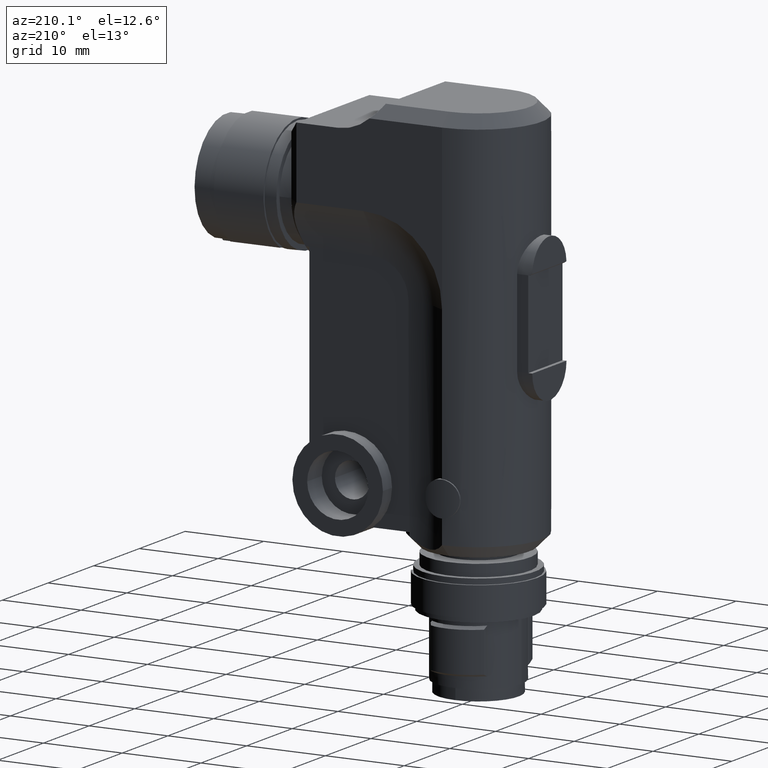
[diagram: clean part render]
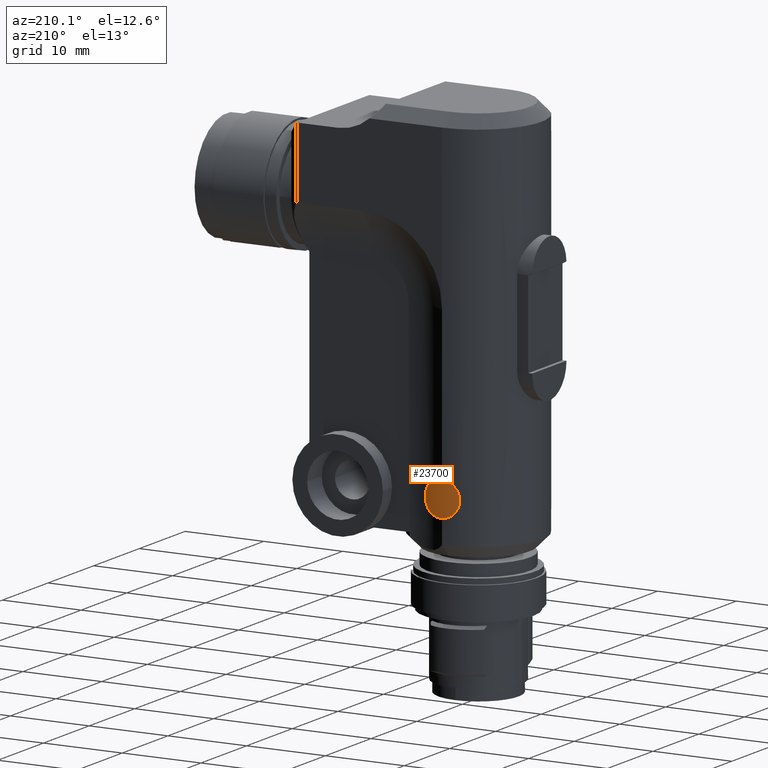
[diagram: same view with one face highlighted and labeled with its STEP entity id]
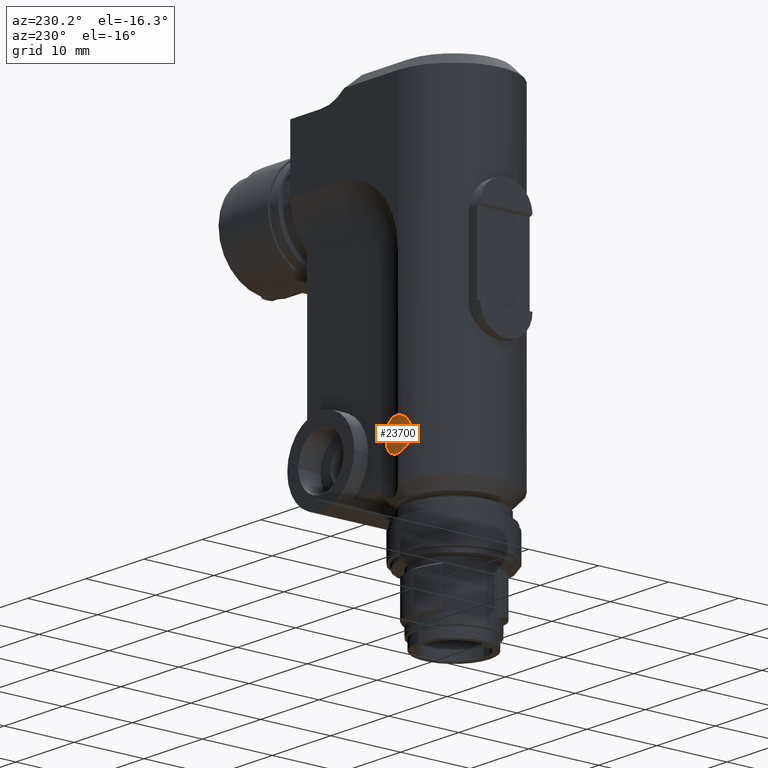
[diagram: same view with one face highlighted and labeled with its STEP entity id]
A machine part, auxiliary view. The second image highlights one B-rep face of the part: STEP entity #23700.
A second angle (auxiliary view) of the same face is appended — the face is thin or edge-on in the first view.
In plain terms, the highlighted cylindrical surface (partial cylindrical patch) has radius 8.201 mm, axis along (0, -0, 1).
Its self-contained STEP definition (entity closure, byte-faithful):
#7310=CARTESIAN_POINT('',(-8.00000000000064,305.134993871815,4.55));
#7320=CARTESIAN_POINT('',(-8.00000000000064,303.423331201174,4.55));
#7330=CARTESIAN_POINT('',(-8.00000000000064,301.711668530533,4.55));
#7340=CARTESIAN_POINT('',(-8.00000000000064,200.000003906595,4.55));
#7350=CARTESIAN_POINT('',(-8.00000000000064,100.000001953297,4.55));
#7360=CARTESIAN_POINT('',(-8.00000000000065,-0.277683059985009,4.55));
#7370=CARTESIAN_POINT('',(-8.00000000000065,-0.572961063435002,
4.60577237163017));
#7380=CARTESIAN_POINT('',(-8.00000000000065,-1.1146110937259,
4.83071926559079));
#7390=CARTESIAN_POINT('',(-8.00000000000065,-1.36109028303667,
4.99982044581586));
#7400=CARTESIAN_POINT('',(-8.00000000000065,-1.75021595875995,
5.38894612153914));
#7410=CARTESIAN_POINT('',(-8.00000000000065,-1.91928881847184,
5.63541027472915));
#7420=CARTESIAN_POINT('',(-8.00000000000065,-2.1442149628536,
6.17700653646077));
#7430=CARTESIAN_POINT('',(-8.00000000000064,-2.19999999999999,
6.47226497798593));
#7440=CARTESIAN_POINT('',(-8.00000000000064,-2.19999999999999,
7.02773502201409));
#7450=CARTESIAN_POINT('',(-8.00000000000064,-2.1442149628536,
7.32299346353924));
#7460=CARTESIAN_POINT('',(-8.00000000000064,-1.91928881847184,
7.86458972527087));
#7470=CARTESIAN_POINT('',(-8.00000000000064,-1.75021595875995,
8.11105387846088));
#7480=CARTESIAN_POINT('',(-8.00000000000064,-1.36109028303667,
8.50017955418415));
#7490=CARTESIAN_POINT('',(-8.00000000000064,-1.1146110937259,
8.66928073440923));
#7500=CARTESIAN_POINT('',(-8.00000000000064,-0.572961063435002,
8.89422762836984));
#7510=CARTESIAN_POINT('',(-8.00000000000064,-0.277683059985009,
8.95000000000001));
#7520=CARTESIAN_POINT('',(-8.00000000000064,100.000001953297,
8.95000000000001));
#7530=CARTESIAN_POINT('',(-8.00000000000064,200.000003906595,
8.95000000000001));
#7540=CARTESIAN_POINT('',(-8.00000000000063,301.711668530533,
8.95000000000001));
#7550=CARTESIAN_POINT('',(-8.00000000000063,303.423331201174,
8.95000000000001));
#7560=CARTESIAN_POINT('',(-8.00000000000063,305.134993871815,
8.95000000000001));
#7570=B_SPLINE_CURVE_WITH_KNOTS('',3,(#7310,#7320,#7330,#7340,#7350,
#7360,#7370,#7380,#7390,#7400,#7410,#7420,#7430,#7440,#7450,#7460,#7470,
#7480,#7490,#7500,#7510,#7520,#7530,#7540,#7550,#7560),.UNSPECIFIED.,.F.
,.F.,(4,2,2,2,2,2,2,2,2,2,2,2,4),(-45.7815778421587,-45.0111389934268,0.
,0.124988305649667,0.249976611299334,0.374988305649667,0.5,
0.625011694350332,0.750023388700666,0.875011694350333,1.,
46.0111389934294,46.7815778421614),.UNSPECIFIED.);
#7580=DIRECTION('',(1.,-3.0839528461811E-17,-8.91609571378369E-16));
#7590=VECTOR('',#7580,1.);
#7600=SURFACE_OF_LINEAR_EXTRUSION('',#7570,#7590);
#11790=CARTESIAN_POINT('',(-7.99999999999999,-288.297717083381,
8.95000000000001));
#11800=CARTESIAN_POINT('',(-7.99999999999999,-286.479384099412,
8.95000000000001));
#11810=CARTESIAN_POINT('',(-7.99999999999999,-284.661051115443,
8.95000000000001));
#11820=CARTESIAN_POINT('',(-7.99999999999999,-188.561812087649,
8.95000000000001));
#11830=CARTESIAN_POINT('',(-7.99999999999999,-94.2809060438244,
8.95000000000001));
#11840=CARTESIAN_POINT('',(-7.99999999999999,0.277683059985009,
8.95000000000001));
#11850=CARTESIAN_POINT('',(-7.99999999999999,0.572961063435002,
8.89422762836984));
#11860=CARTESIAN_POINT('',(-7.99999999999999,1.1146110937259,
8.66928073440923));
#11870=CARTESIAN_POINT('',(-7.99999999999999,1.36109028303667,
8.50017955418415));
#11880=CARTESIAN_POINT('',(-7.99999999999999,1.75021595875995,
8.11105387846088));
#11890=CARTESIAN_POINT('',(-7.99999999999999,1.9192888184719,
7.86458972527087));
#11900=CARTESIAN_POINT('',(-7.99999999999999,2.1442149628536,
7.32299346353924));
#11910=CARTESIAN_POINT('',(-7.99999999999999,2.19999999999999,
7.02773502201409));
#11920=CARTESIAN_POINT('',(-7.99999999999999,2.19999999999999,
6.47226497798593));
#11930=CARTESIAN_POINT('',(-7.99999999999999,2.1442149628536,
6.17700653646077));
#11940=CARTESIAN_POINT('',(-7.99999999999999,1.9192888184719,
5.63541027472915));
#11950=CARTESIAN_POINT('',(-7.99999999999999,1.75021595875995,
5.38894612153914));
#11960=CARTESIAN_POINT('',(-7.99999999999999,1.36109028303667,
4.99982044581586));
#11970=CARTESIAN_POINT('',(-7.99999999999999,1.1146110937259,
4.83071926559079));
#11980=CARTESIAN_POINT('',(-7.99999999999999,0.572961063435002,
4.60577237163017));
#11990=CARTESIAN_POINT('',(-7.99999999999999,0.277683059985009,4.55));
#12000=CARTESIAN_POINT('',(-7.99999999999999,-94.2809060438244,4.55));
#12010=CARTESIAN_POINT('',(-8.,-188.561812087649,4.55));
#12020=CARTESIAN_POINT('',(-8.,-284.661051115443,4.55));
#12030=CARTESIAN_POINT('',(-8.,-286.479384099412,4.55));
#12040=CARTESIAN_POINT('',(-8.,-288.297717083381,4.55));
#12050=B_SPLINE_CURVE_WITH_KNOTS('',3,(#11790,#11800,#11810,#11820,
#11830,#11840,#11850,#11860,#11870,#11880,#11890,#11900,#11910,#11920,
#11930,#11940,#11950,#11960,#11970,#11980,#11990,#12000,#12010,#12020,
#12030,#12040),.UNSPECIFIED.,.F.,.F.,(4,2,2,2,2,2,2,2,2,2,2,2,4),(
-43.2553612055216,-42.4369088347306,0.,0.124988305649672,
0.249976611299327,0.374988305649668,0.499999999999993,0.625011694350334,
0.750023388700659,0.87501169435033,1.,43.4369088347325,44.2553612055235)
,.UNSPECIFIED.);
#12060=DIRECTION('',(1.,-3.0839528461811E-17,-8.91609571378369E-16));
#12070=VECTOR('',#12060,1.);
#12080=SURFACE_OF_LINEAR_EXTRUSION('',#12050,#12070);
#20130=CARTESIAN_POINT('',(1.22044833166677E-13,2.09524963165215E-14,6.3
));
#20140=DIRECTION('',(8.91609571378369E-16,1.60567386648952E-31,1.));
#20150=DIRECTION('',(1.,-3.08395284618109E-17,-8.91609571378369E-16));
#20160=AXIS2_PLACEMENT_3D('',#20130,#20140,#20150);
#20170=CYLINDRICAL_SURFACE('',#20160,8.20100000000012);
#20180=CARTESIAN_POINT('',(-8.201,-2.42937352408104E-14,4.55));
#20190=CARTESIAN_POINT('',(-8.201,-0.0435929381622827,4.55));
#20200=CARTESIAN_POINT('',(-8.20065197846482,-0.0871847895171171,
4.55137258002576));
#20210=CARTESIAN_POINT('',(-8.19995862784445,-0.130688567363351,
4.55405118064142));
#20220=CARTESIAN_POINT('',(-8.19926533063975,-0.174188993682367,
4.55672957489793));
#20230=CARTESIAN_POINT('',(-8.19822641844186,-0.217616905346762,
4.56071550494725));
#20240=CARTESIAN_POINT('',(-8.19684994649795,-0.260867695578726,
4.56596126998666));
#20250=CARTESIAN_POINT('',(-8.195473311658,-0.304123604246075,
4.5712076558265));
#20260=CARTESIAN_POINT('',(-8.19375770586023,-0.347242867538714,
4.57771949105158));
#20270=CARTESIAN_POINT('',(-8.19171614724751,-0.390112244007354,
4.58546454331642));
#20280=CARTESIAN_POINT('',(-8.19069536673442,-0.411546957581073,
4.58933707402682));
#20290=CARTESIAN_POINT('',(-8.18959320335963,-0.432919233979463,
4.59351802458713));
#20300=CARTESIAN_POINT('',(-8.1884119247312,-0.454214873072047,
4.59800390973229));
#20310=CARTESIAN_POINT('',(-8.18723065846734,-0.475510289260991,
4.60248974792323));
#20320=CARTESIAN_POINT('',(-8.18596895790823,-0.496752826906849,
4.60728552706882));
#20330=CARTESIAN_POINT('',(-8.18462903137979,-0.517927233011752,
4.61238993790416));
#20340=CARTESIAN_POINT('',(-8.18194917879125,-0.560276037820498,
4.62259875779071));
#20350=CARTESIAN_POINT('',(-8.17895597224747,-0.60235233914274,
4.63404195280558));
#20360=CARTESIAN_POINT('',(-8.1756725283393,-0.644033934943641,
4.64671114367802));
#20370=CARTESIAN_POINT('',(-8.17238908415114,-0.685715534298825,
4.65938033563078));
#20380=CARTESIAN_POINT('',(-8.16881541546391,-0.7270024727477,
4.67327557307674));
#20390=CARTESIAN_POINT('',(-8.16498171971145,-0.767772438146948,
4.68839076959702));
#20400=CARTESIAN_POINT('',(-8.16306487169086,-0.788157422381795,
4.69594836842633));
#20410=CARTESIAN_POINT('',(-8.16108312577906,-0.80841316485137,
4.70381099055764));
#20420=CARTESIAN_POINT('',(-8.15904089829518,-0.828524362916756,
4.71197805082973));
#20430=CARTESIAN_POINT('',(-8.15699898058923,-0.848632510388874,
4.72014387227064));
#20440=CARTESIAN_POINT('',(-8.1548959251733,-0.868603620495223,
4.72861877586198));
#20450=CARTESIAN_POINT('',(-8.15273247604234,-0.888456061988792,
4.73740530406343));
#20460=CARTESIAN_POINT('',(-8.14840609882188,-0.928156163747256,
4.75497624433364));
#20470=CARTESIAN_POINT('',(-8.14384207758482,-0.96734119396262,
4.77377450945609));
#20480=CARTESIAN_POINT('',(-8.13907290061035,-1.00592908226935,
4.79371506998204));
#20490=CARTESIAN_POINT('',(-8.13430372351038,-1.04451697159151,
4.81365563103272));
#20500=CARTESIAN_POINT('',(-8.12932937983179,-1.08250792353898,
4.83473854296563));
#20510=CARTESIAN_POINT('',(-8.1241864987951,-1.11981906252683,
4.85688175421557));
#20520=CARTESIAN_POINT('',(-8.11904362051916,-1.1571301814857,
4.8790249535788));
#20530=CARTESIAN_POINT('',(-8.11373218300521,-1.19376174722654,
4.90222854623059));
#20540=CARTESIAN_POINT('',(-8.10829288396631,-1.22962901227209,
4.92641368589961));
#20550=CARTESIAN_POINT('',(-8.10285550914093,-1.26548358886726,
4.95059026980213));
#20560=CARTESIAN_POINT('',(-8.09727438932915,-1.30067963570003,
4.97581818293825));
#20570=CARTESIAN_POINT('',(-8.09159021698253,-1.33512874301803,
5.00205020352021));
#20580=CARTESIAN_POINT('',(-8.08590616244854,-1.36957713632882,
5.0282816804059));
#20590=CARTESIAN_POINT('',(-8.08011945441222,-1.40327607205907,
5.05551520463425));
#20600=CARTESIAN_POINT('',(-8.07427695726709,-1.43612416501714,
5.08370537106547));
#20610=CARTESIAN_POINT('',(-8.06843447227693,-1.46897218963666,
5.11189547884869));
#20620=CARTESIAN_POINT('',(-8.06253600787031,-1.50097046109125,
5.14104271140809));
#20630=CARTESIAN_POINT('',(-8.05663394407753,-1.53200864590831,
5.17111149558006));
#20640=CARTESIAN_POINT('',(-8.05368270247456,-1.54752884113641,
5.18614695604179));
#20650=CARTESIAN_POINT('',(-8.05073205363097,-1.56280172386644,
5.2014089773378));
#20660=CARTESIAN_POINT('',(-8.04778376283874,-1.57783950602066,
5.21690924837652));
#20670=CARTESIAN_POINT('',(-8.04483606210331,-1.59287427858513,
5.23240641726519));
#20680=CARTESIAN_POINT('',(-8.04188735544639,-1.60769102010474,
5.2481562219785));
#20690=CARTESIAN_POINT('',(-8.03894226994744,-1.62228486415104,
5.26414604312716));
#20700=CARTESIAN_POINT('',(-8.0330521386538,-1.65147235549632,
5.29612546985726));
#20710=CARTESIAN_POINT('',(-8.02717663419379,-1.67976729588466,
5.32906294071724));
#20720=CARTESIAN_POINT('',(-8.0213560330031,-1.70711698249394,
5.36285720539045));
#20730=CARTESIAN_POINT('',(-8.01553541409282,-1.73446675236354,
5.39665157294313));
#20740=CARTESIAN_POINT('',(-8.0097696119548,-1.76087169871938,
5.43130353914668));
#20750=CARTESIAN_POINT('',(-8.0041007515746,-1.78627325997331,
5.46672081496357));
#20760=CARTESIAN_POINT('',(-7.99667330825851,-1.81955484457767,
5.51312516978932));
#20770=CARTESIAN_POINT('',(-7.98941199097732,-1.85111523706077,
5.56084441181492));
#20780=CARTESIAN_POINT('',(-7.98241590736013,-1.88080761427742,
5.60968389192019));
#20790=CARTESIAN_POINT('',(-7.97541982820568,-1.91049997255357,
5.65852334087122));
#20800=CARTESIAN_POINT('',(-7.9686889446768,-1.93832489963374,
5.70848481910092));
#20810=CARTESIAN_POINT('',(-7.96232572422676,-1.96412068412287,
5.75937969850169));
#20820=CARTESIAN_POINT('',(-7.95596239569058,-1.98991690678111,
5.81027544240667));
#20830=CARTESIAN_POINT('',(-7.94996740638255,-2.01368191784884,
5.86210144958397));
#20840=CARTESIAN_POINT('',(-7.94444245020651,-2.03524818028584,
5.9146794142025));
#20850=CARTESIAN_POINT('',(-7.9389149470673,-2.05682438460732,
5.96728161686655));
#20860=CARTESIAN_POINT('',(-7.93382888710835,-2.07631493528063,
6.02089481215849));
#20870=CARTESIAN_POINT('',(-7.92923691121412,-2.09370556809491,
6.07524283577746));
#20880=CARTESIAN_POINT('',(-7.92464493709205,-2.1110961941977,
6.12959083842216));
#20890=CARTESIAN_POINT('',(-7.92054699233029,-2.12638719428412,
6.1846740515454));
#20900=CARTESIAN_POINT('',(-7.91698741924533,-2.13955864689766,
6.2402175155658));
#20910=CARTESIAN_POINT('',(-7.9152075300502,-2.14614475304899,
6.26799084936457));
#20920=CARTESIAN_POINT('',(-7.91356249042525,-2.15219945484057,
6.29587247898553));
#20930=CARTESIAN_POINT('',(-7.91205603887231,-2.15772339231519,
6.32384760611993));
#20940=CARTESIAN_POINT('',(-7.91054905644834,-2.16324927641625,
6.35183259164293));
#20950=CARTESIAN_POINT('',(-7.90917824935354,-2.16825319535051,
6.37995888803184));
#20960=CARTESIAN_POINT('',(-7.9079498236591,-2.17272423157892,
6.40819244137439));
#20970=CARTESIAN_POINT('',(-7.90549298124394,-2.18166627137454,
6.46465934181166));
#20980=CARTESIAN_POINT('',(-7.90360592119882,-2.18847825323399,
6.52155581987446));
#20990=CARTESIAN_POINT('',(-7.90233401775343,-2.19306134703453,
6.57861236367154));
#21000=CARTESIAN_POINT('',(-7.90106212220757,-2.19764441237043,
6.63566855310242));
#21010=CARTESIAN_POINT('',(-7.900405116195,-2.19999999999999,
6.69288803856371));
#21020=CARTESIAN_POINT('',(-7.900405116195,-2.19999999999999,
6.75000000000002));
#21030=CARTESIAN_POINT('',(-7.900405116195,-2.19999999999999,
6.80711196143632));
#21040=CARTESIAN_POINT('',(-7.90106212220757,-2.19764441237043,
6.86433144689763));
#21050=CARTESIAN_POINT('',(-7.90233401775343,-2.19306134703453,
6.9213876363285));
#21060=CARTESIAN_POINT('',(-7.90360592119882,-2.18847825323399,
6.97844418012556));
#21070=CARTESIAN_POINT('',(-7.90549298124394,-2.18166627137453,
7.03534065818839));
#21080=CARTESIAN_POINT('',(-7.90794982365909,-2.17272423157891,
7.09180755862564));
#21090=CARTESIAN_POINT('',(-7.90917824935353,-2.16825319535051,
7.1200411119682));
#21100=CARTESIAN_POINT('',(-7.91054905644834,-2.16324927641624,
7.14816740835711));
#21110=CARTESIAN_POINT('',(-7.91205603887232,-2.15772339231518,
7.1761523938801));
#21120=CARTESIAN_POINT('',(-7.91356249042525,-2.15219945484056,
7.2041275210145));
#21130=CARTESIAN_POINT('',(-7.9152075300502,-2.14614475304898,
7.23200915063547));
#21140=CARTESIAN_POINT('',(-7.91698741924533,-2.13955864689766,
7.25978248443423));
#21150=CARTESIAN_POINT('',(-7.92054699233029,-2.12638719428411,
7.31532594845464));
#21160=CARTESIAN_POINT('',(-7.92464493709205,-2.11109619419769,
7.37040916157788));
#21170=CARTESIAN_POINT('',(-7.92923691121412,-2.0937055680949,
7.42475716422257));
#21180=CARTESIAN_POINT('',(-7.93382888710835,-2.07631493528062,
7.47910518784155));
#21190=CARTESIAN_POINT('',(-7.9389149470673,-2.05682438460731,
7.53271838313348));
#21200=CARTESIAN_POINT('',(-7.94444245020651,-2.03524818028583,
7.58532058579753));
#21210=CARTESIAN_POINT('',(-7.94996740638255,-2.01368191784883,
7.63789855041607));
#21220=CARTESIAN_POINT('',(-7.95596239569058,-1.9899169067811,
7.68972455759335));
#21230=CARTESIAN_POINT('',(-7.96232572422676,-1.96412068412286,
7.74062030149834));
#21240=CARTESIAN_POINT('',(-7.9686889446768,-1.93832489963373,
7.79151518089911));
#21250=CARTESIAN_POINT('',(-7.97541982820568,-1.91049997255356,
7.84147665912882));
#21260=CARTESIAN_POINT('',(-7.98241590736013,-1.8808076142774,
7.89031610807984));
#21270=CARTESIAN_POINT('',(-7.98941199097732,-1.85111523706076,
7.93915558818512));
#21280=CARTESIAN_POINT('',(-7.99667330825852,-1.81955484457766,
7.98687483021072));
#21290=CARTESIAN_POINT('',(-8.0041007515746,-1.7862732599733,
8.03327918503647));
#21300=CARTESIAN_POINT('',(-8.0097696119548,-1.76087169871937,
8.06869646085335));
#21310=CARTESIAN_POINT('',(-8.01553541409282,-1.73446675236353,
8.10334842705691));
#21320=CARTESIAN_POINT('',(-8.0213560330031,-1.70711698249392,
8.13714279460958));
#21330=CARTESIAN_POINT('',(-8.02717663419178,-1.67976729589409,
8.17093705927111));
#21340=CARTESIAN_POINT('',(-8.03305213865176,-1.65147235550643,
8.20387453013168));
#21350=CARTESIAN_POINT('',(-8.03894226994745,-1.62228486415102,
8.23585395687287));
#21360=CARTESIAN_POINT('',(-8.04188735544639,-1.60769102010472,
8.25184377802153));
#21370=CARTESIAN_POINT('',(-8.04483606210331,-1.59287427858511,
8.26759358273485));
#21380=CARTESIAN_POINT('',(-8.04778376283874,-1.57783950602064,
8.28309075162352));
#21390=CARTESIAN_POINT('',(-8.0507320536312,-1.56280172386523,
8.29859102266346));
#21400=CARTESIAN_POINT('',(-8.05368270247479,-1.54752884113515,
8.31385304395943));
#21410=CARTESIAN_POINT('',(-8.05663394407753,-1.53200864590829,
8.32888850441997));
#21420=CARTESIAN_POINT('',(-8.0625360078703,-1.50097046109124,
8.35895728859193));
#21430=CARTESIAN_POINT('',(-8.06843447227694,-1.46897218963662,
8.38810452115135));
#21440=CARTESIAN_POINT('',(-8.07427695726709,-1.43612416501712,
8.41629462893455));
#21450=CARTESIAN_POINT('',(-8.08011945441221,-1.40327607205905,
8.44448479536577));
#21460=CARTESIAN_POINT('',(-8.08590616244854,-1.3695771363288,
8.47171831959413));
#21470=CARTESIAN_POINT('',(-8.09159021698253,-1.335128743018,
8.49794979647981));
#21480=CARTESIAN_POINT('',(-8.09727438932915,-1.30067963570001,
8.52418181706178));
#21490=CARTESIAN_POINT('',(-8.10285550914092,-1.26548358886725,
8.54940973019789));
#21500=CARTESIAN_POINT('',(-8.10829288396631,-1.22962901227207,
8.57358631410042));
#21510=CARTESIAN_POINT('',(-8.11373218300521,-1.19376174722652,
8.59777145376943));
#21520=CARTESIAN_POINT('',(-8.11904362051915,-1.15713018148567,
8.62097504642122));
#21530=CARTESIAN_POINT('',(-8.12418649879509,-1.11981906252681,
8.64311824578446));
#21540=CARTESIAN_POINT('',(-8.12932937983178,-1.08250792353895,
8.66526145703439));
#21550=CARTESIAN_POINT('',(-8.13430372351038,-1.04451697159149,
8.6863443689673));
#21560=CARTESIAN_POINT('',(-8.13907290061035,-1.00592908226933,
8.70628493001798));
#21570=CARTESIAN_POINT('',(-8.14384207758482,-0.967341193962595,
8.72622549054393));
#21580=CARTESIAN_POINT('',(-8.14840609882188,-0.928156163747231,
8.74502375566638));
#21590=CARTESIAN_POINT('',(-8.15273247604234,-0.888456061988767,
8.76259469593659));
#21600=CARTESIAN_POINT('',(-8.1548959251733,-0.868603620495198,
8.77138122413804));
#21610=CARTESIAN_POINT('',(-8.15699898058923,-0.848632510388848,
8.77985612772938));
#21620=CARTESIAN_POINT('',(-8.15904089829518,-0.82852436291673,
8.78802194917029));
#21630=CARTESIAN_POINT('',(-8.16108312577906,-0.808413164851346,
8.79618900944238));
#21640=CARTESIAN_POINT('',(-8.16306487169087,-0.788157422381768,
8.80405163157369));
#21650=CARTESIAN_POINT('',(-8.16498171971145,-0.767772438146922,
8.811609230403));
#21660=CARTESIAN_POINT('',(-8.16881541546391,-0.727002472747679,
8.82672442692327));
#21670=CARTESIAN_POINT('',(-8.17238908415113,-0.685715534298791,
8.84061966436923));
#21680=CARTESIAN_POINT('',(-8.17567252833929,-0.644033934943612,
8.853288856322));
#21690=CARTESIAN_POINT('',(-8.17895597224747,-0.602352339142713,
8.86595804719444));
#21700=CARTESIAN_POINT('',(-8.18194917879125,-0.560276037820468,
8.87740124220931));
#21710=CARTESIAN_POINT('',(-8.18462903137979,-0.517927233011723,
8.88761006209585));
#21720=CARTESIAN_POINT('',(-8.18596895790823,-0.496752826906812,
8.8927144729312));
#21730=CARTESIAN_POINT('',(-8.18723065846734,-0.475510289260969,
8.89751025207678));
#21740=CARTESIAN_POINT('',(-8.1884119247312,-0.454214873072016,
8.90199609026772));
#21750=CARTESIAN_POINT('',(-8.18959320335963,-0.432919233979436,
8.90648197541288));
#21760=CARTESIAN_POINT('',(-8.19069536673441,-0.41154695758104,
8.91066292597319));
#21770=CARTESIAN_POINT('',(-8.1917161472475,-0.390112244007326,
8.91453545668358));
#21780=CARTESIAN_POINT('',(-8.19375770586013,-0.347242867540663,
8.92228050894807));
#21790=CARTESIAN_POINT('',(-8.19547331165793,-0.304123604248027,
8.92879234417327));
#21800=CARTESIAN_POINT('',(-8.19684994649795,-0.260867695578694,
8.93403873001335));
#21810=CARTESIAN_POINT('',(-8.19822641844127,-0.217616905365155,
8.93928449505052));
#21820=CARTESIAN_POINT('',(-8.19926533063945,-0.17418899370089,
8.94327042510093));
#21830=CARTESIAN_POINT('',(-8.19995862784444,-0.130688567363318,
8.94594881935858));
#21840=CARTESIAN_POINT('',(-8.20065197846481,-0.0871847895170942,
8.94862741997424));
#21850=CARTESIAN_POINT('',(-8.201,-0.0435929381622486,8.95000000000001))
;
#21860=CARTESIAN_POINT('',(-8.201,5.20666688032169E-15,8.95000000000001)
);
#21870=B_SPLINE_CURVE_WITH_KNOTS('',3,(#20180,#20190,#20200,#20210,
#20220,#20230,#20240,#20250,#20260,#20270,#20280,#20290,#20300,#20310,
#20320,#20330,#20340,#20350,#20360,#20370,#20380,#20390,#20400,#20410,
#20420,#20430,#20440,#20450,#20460,#20470,#20480,#20490,#20500,#20510,
#20520,#20530,#20540,#20550,#20560,#20570,#20580,#20590,#20600,#20610,
#20620,#20630,#20640,#20650,#20660,#20670,#20680,#20690,#20700,#20710,
#20720,#20730,#20740,#20750,#20760,#20770,#20780,#20790,#20800,#20810,
#20820,#20830,#20840,#20850,#20860,#20870,#20880,#20890,#20900,#20910,
#20920,#20930,#20940,#20950,#20960,#20970,#20980,#20990,#21000,#21010,
#21020,#21030,#21040,#21050,#21060,#21070,#21080,#21090,#21100,#21110,
#21120,#21130,#21140,#21150,#21160,#21170,#21180,#21190,#21200,#21210,
#21220,#21230,#21240,#21250,#21260,#21270,#21280,#21290,#21300,#21310,
#21320,#21330,#21340,#21350,#21360,#21370,#21380,#21390,#21400,#21410,
#21420,#21430,#21440,#21450,#21460,#21470,#21480,#21490,#21500,#21510,
#21520,#21530,#21540,#21550,#21560,#21570,#21580,#21590,#21600,#21610,
#21620,#21630,#21640,#21650,#21660,#21670,#21680,#21690,#21700,#21710,
#21720,#21730,#21740,#21750,#21760,#21770,#21780,#21790,#21800,#21810,
#21820,#21830,#21840,#21850,#21860),.UNSPECIFIED.,.F.,.F.,(4,3,3,3,3,3,3
,3,3,3,3,3,3,3,3,3,3,3,3,3,3,3,3,3,3,3,3,3,3,3,3,3,3,3,3,3,3,3,3,3,3,3,3
,3,3,3,3,3,3,3,3,3,3,3,3,3,4),(0.,0.13077747151571,0.261557676371862,
0.39238586618688,0.457789356783741,0.523217555707179,0.654237450172557,
0.785264320983749,0.850707393874198,0.916117627246204,1.04712361689443,
1.17822484102685,1.30918389728261,1.44008365736083,1.57112643552222,
1.70208461907622,1.76748006191934,1.83294151762232,1.96429845872615,
2.09604042634129,2.26883995797655,2.44137506621002,2.61316836696454,
2.78476431649991,2.95647463444922,3.04220210873371,3.12797433658646,
3.29974063944745,3.47132896930246,3.64291729915747,3.81468360201846,
3.90045582987122,3.98618330415571,4.15789362210502,4.32948957164038,
4.50128287239489,4.67381798062836,4.84661751226362,4.97835947987877,
5.10971642098258,5.17517787668555,5.24057331952867,5.37153150308267,
5.50257428124406,5.63347404132228,5.76443309757804,5.89553432171046,
6.02654031135869,6.0919505447307,6.15739361762115,6.28842048843234,
6.41944038289771,6.48486858182115,6.55027207241802,6.68110026223303,
6.81188046708917,6.94265793860488),.UNSPECIFIED.);
#21880=SURFACE_CURVE('',#21870,(#20170,#7600),.CURVE_3D.);
#21890=CARTESIAN_POINT('',(-8.201,-2.50848416113119E-14,4.55));
#21900=VERTEX_POINT('',#21890);
#21910=CARTESIAN_POINT('',(-8.201,4.78015775110898E-15,8.95000000000001)
);
#21920=VERTEX_POINT('',#21910);
#21930=EDGE_CURVE('',#21900,#21920,#21880,.T.);
#21940=ORIENTED_EDGE('',*,*,#21930,.T.);
#21950=CARTESIAN_POINT('',(-8.201,6.23875529591862E-15,8.95000000000001)
);
#21960=CARTESIAN_POINT('',(-8.201,0.0435929381622577,8.95000000000001));
#21970=CARTESIAN_POINT('',(-8.20065197846481,0.087184789517093,
8.94862741997424));
#21980=CARTESIAN_POINT('',(-8.19995862784444,0.130688567363324,
8.94594881935858));
#21990=CARTESIAN_POINT('',(-8.19926533063974,0.174188993682335,
8.94327042510207));
#22000=CARTESIAN_POINT('',(-8.19822641844186,0.217616905346728,
8.93928449505275));
#22010=CARTESIAN_POINT('',(-8.19684994649795,0.260867695578691,
8.93403873001335));
#22020=CARTESIAN_POINT('',(-8.195473311658,0.304123604246036,
8.92879234417351));
#22030=CARTESIAN_POINT('',(-8.19375770586023,0.347242867538675,
8.92228050894843));
#22040=CARTESIAN_POINT('',(-8.19171614724751,0.39011224400731,
8.91453545668358));
#22050=CARTESIAN_POINT('',(-8.19069536673442,0.411546957581032,
8.91066292597318));
#22060=CARTESIAN_POINT('',(-8.18959320335963,0.432919233979413,
8.90648197541289));
#22070=CARTESIAN_POINT('',(-8.18841192473121,0.454214873071999,
8.90199609026773));
#22080=CARTESIAN_POINT('',(-8.18723065846735,0.475510289260943,
8.89751025207679));
#22090=CARTESIAN_POINT('',(-8.18596895790823,0.496752826906796,
8.8927144729312));
#22100=CARTESIAN_POINT('',(-8.18462903137979,0.517927233011702,
8.88761006209586));
#22110=CARTESIAN_POINT('',(-8.18194917879125,0.560276037820451,
8.87740124220931));
#22120=CARTESIAN_POINT('',(-8.17895597224748,0.602352339142678,
8.86595804719444));
#22130=CARTESIAN_POINT('',(-8.1756725283393,0.644033934943585,
8.85328885632201));
#22140=CARTESIAN_POINT('',(-8.17238908415114,0.685715534298764,
8.84061966436924));
#22150=CARTESIAN_POINT('',(-8.16881541546392,0.727002472747644,
8.82672442692328));
#22160=CARTESIAN_POINT('',(-8.16498171971146,0.767772438146886,
8.81160923040301));
#22170=CARTESIAN_POINT('',(-8.16306487169087,0.788157422381731,
8.8040516315737));
#22180=CARTESIAN_POINT('',(-8.16108312577907,0.808413164851306,
8.79618900944239));
#22190=CARTESIAN_POINT('',(-8.15904089829519,0.82852436291669,
8.78802194917031));
#22200=CARTESIAN_POINT('',(-8.15699898058924,0.848632510388806,
8.77985612772939));
#22210=CARTESIAN_POINT('',(-8.15489592517331,0.868603620495158,
8.77138122413806));
#22220=CARTESIAN_POINT('',(-8.15273247604235,0.888456061988726,
8.76259469593661));
#22230=CARTESIAN_POINT('',(-8.14840609882176,0.928156163748363,
8.74502375566589));
#22240=CARTESIAN_POINT('',(-8.14384207758468,0.967341193963696,
8.72622549054336));
#22250=CARTESIAN_POINT('',(-8.13907290061036,1.00592908226928,
8.70628493001801));
#22260=CARTESIAN_POINT('',(-8.13430372351039,1.04451697159143,
8.68634436896733));
#22270=CARTESIAN_POINT('',(-8.1293293798318,1.08250792353891,
8.66526145703441));
#22280=CARTESIAN_POINT('',(-8.12418649879511,1.11981906252676,
8.64311824578449));
#22290=CARTESIAN_POINT('',(-8.11904362051917,1.15713018148562,
8.62097504642125));
#22300=CARTESIAN_POINT('',(-8.11373218300523,1.19376174722646,
8.59777145376948));
#22310=CARTESIAN_POINT('',(-8.10829288396633,1.22962901227201,
8.57358631410046));
#22320=CARTESIAN_POINT('',(-8.10285550914094,1.26548358886718,
8.54940973019794));
#22330=CARTESIAN_POINT('',(-8.09727438932917,1.30067963569995,
8.52418181706182));
#22340=CARTESIAN_POINT('',(-8.09159021698255,1.33512874301794,
8.49794979647986));
#22350=CARTESIAN_POINT('',(-8.08590616244856,1.36957713632874,
8.47171831959417));
#22360=CARTESIAN_POINT('',(-8.08011945441223,1.40327607205899,
8.44448479536582));
#22370=CARTESIAN_POINT('',(-8.07427695726711,1.43612416501705,
8.41629462893461));
#22380=CARTESIAN_POINT('',(-8.06843447227696,1.46897218963656,
8.3881045211514));
#22390=CARTESIAN_POINT('',(-8.06253600787032,1.50097046109117,
8.358957288592));
#22400=CARTESIAN_POINT('',(-8.05663394407755,1.53200864590822,
8.32888850442003));
#22410=CARTESIAN_POINT('',(-8.05368270247458,1.54752884113632,
8.31385304395831));
#22420=CARTESIAN_POINT('',(-8.05073205363099,1.56280172386636,
8.2985910226623));
#22430=CARTESIAN_POINT('',(-8.04778376283875,1.57783950602057,
8.28309075162359));
#22440=CARTESIAN_POINT('',(-8.04483606210333,1.59287427858504,
8.26759358273492));
#22450=CARTESIAN_POINT('',(-8.04188735544641,1.60769102010465,
8.2518437780216));
#22460=CARTESIAN_POINT('',(-8.03894226994747,1.62228486415095,
8.23585395687295));
#22470=CARTESIAN_POINT('',(-8.03305213865383,1.65147235549624,
8.20387453014285));
#22480=CARTESIAN_POINT('',(-8.02717663419382,1.67976729588456,
8.17093705928289));
#22490=CARTESIAN_POINT('',(-8.02135603300312,1.70711698249386,
8.13714279460968));
#22500=CARTESIAN_POINT('',(-8.01553541409243,1.73446675236541,
8.1033484270546));
#22510=CARTESIAN_POINT('',(-8.00976961195442,1.7608716987211,
8.06869646085095));
#22520=CARTESIAN_POINT('',(-8.00410075157463,1.78627325997323,
8.03327918503658));
#22530=CARTESIAN_POINT('',(-7.99667330825853,1.81955484457761,
7.98687483021082));
#22540=CARTESIAN_POINT('',(-7.98941199097734,1.85111523706071,
7.93915558818523));
#22550=CARTESIAN_POINT('',(-7.98241590736015,1.88080761427737,
7.89031610807996));
#22560=CARTESIAN_POINT('',(-7.9754198282057,1.91049997255353,
7.84147665912893));
#22570=CARTESIAN_POINT('',(-7.96868894467681,1.93832489963371,
7.79151518089921));
#22580=CARTESIAN_POINT('',(-7.96232572422677,1.96412068412284,
7.74062030149844));
#22590=CARTESIAN_POINT('',(-7.95596239569059,1.98991690678109,
7.68972455759346));
#22600=CARTESIAN_POINT('',(-7.94996740638256,2.01368191784882,
7.63789855041616));
#22610=CARTESIAN_POINT('',(-7.94444245020652,2.03524818028582,
7.58532058579762));
#22620=CARTESIAN_POINT('',(-7.93891494706731,2.0568243846073,
7.53271838313356));
#22630=CARTESIAN_POINT('',(-7.93382888710837,2.07631493528062,
7.47910518784161));
#22640=CARTESIAN_POINT('',(-7.92923691121413,2.0937055680949,
7.42475716422264));
#22650=CARTESIAN_POINT('',(-7.92464493709206,2.11109619419769,
7.37040916157794));
#22660=CARTESIAN_POINT('',(-7.9205469923303,2.12638719428411,
7.31532594845469));
#22670=CARTESIAN_POINT('',(-7.91698741924534,2.13955864689766,
7.25978248443427));
#22680=CARTESIAN_POINT('',(-7.91520753005021,2.14614475304898,
7.23200915063551));
#22690=CARTESIAN_POINT('',(-7.91356249042526,2.15219945484056,
7.20412752101453));
#22700=CARTESIAN_POINT('',(-7.91205603887233,2.15772339231518,
7.17615239388014));
#22710=CARTESIAN_POINT('',(-7.91054905644835,2.16324927641624,
7.14816740835713));
#22720=CARTESIAN_POINT('',(-7.90917824935355,2.1682531953505,
7.12004111196823));
#22730=CARTESIAN_POINT('',(-7.90794982365911,2.17272423157891,
7.09180755862567));
#22740=CARTESIAN_POINT('',(-7.90549298124395,2.18166627137453,
7.03534065818839));
#22750=CARTESIAN_POINT('',(-7.90360592119883,2.18847825323399,
6.9784441801256));
#22760=CARTESIAN_POINT('',(-7.90233401775344,2.19306134703453,
6.9213876363285));
#22770=CARTESIAN_POINT('',(-7.90106212220758,2.19764441237043,
6.86433144689762));
#22780=CARTESIAN_POINT('',(-7.90040511619501,2.19999999999999,
6.80711196143632));
#22790=CARTESIAN_POINT('',(-7.90040511619501,2.19999999999999,6.75));
#22800=CARTESIAN_POINT('',(-7.90040511619501,2.19999999999999,
6.69288803856369));
#22810=CARTESIAN_POINT('',(-7.90106212220758,2.19764441237043,
6.63566855310239));
#22820=CARTESIAN_POINT('',(-7.90233401775344,2.19306134703453,
6.5786123636715));
#22830=CARTESIAN_POINT('',(-7.90360592119883,2.18847825323399,
6.52155581987441));
#22840=CARTESIAN_POINT('',(-7.90549298124395,2.18166627137453,
6.46465934181162));
#22850=CARTESIAN_POINT('',(-7.90794982365911,2.17272423157891,
6.40819244137434));
#22860=CARTESIAN_POINT('',(-7.90917824935355,2.1682531953505,
6.37995888803178));
#22870=CARTESIAN_POINT('',(-7.91054905644835,2.16324927641624,
6.35183259164286));
#22880=CARTESIAN_POINT('',(-7.91205603887233,2.15772339231518,
6.32384760611987));
#22890=CARTESIAN_POINT('',(-7.91356249042527,2.15219945484055,
6.29587247898546));
#22900=CARTESIAN_POINT('',(-7.91520753005022,2.14614475304898,
6.2679908493645));
#22910=CARTESIAN_POINT('',(-7.91698741924534,2.13955864689765,
6.24021751556573));
#22920=CARTESIAN_POINT('',(-7.9205469923303,2.12638719428411,
6.18467405154531));
#22930=CARTESIAN_POINT('',(-7.92464493709206,2.11109619419769,
6.12959083842207));
#22940=CARTESIAN_POINT('',(-7.92923691121414,2.09370556809489,
6.07524283577737));
#22950=CARTESIAN_POINT('',(-7.93382888710837,2.07631493528062,
6.02089481215839));
#22960=CARTESIAN_POINT('',(-7.93891494706732,2.0568243846073,
5.96728161686644));
#22970=CARTESIAN_POINT('',(-7.94444245020652,2.03524818028582,
5.91467941420239));
#22980=CARTESIAN_POINT('',(-7.94996740638256,2.01368191784882,
5.86210144958385));
#22990=CARTESIAN_POINT('',(-7.9559623956906,1.98991690678109,
5.81027544240655));
#23000=CARTESIAN_POINT('',(-7.96232572422677,1.96412068412284,
5.75937969850156));
#23010=CARTESIAN_POINT('',(-7.96868894467681,1.93832489963371,
5.70848481910079));
#23020=CARTESIAN_POINT('',(-7.9754198282057,1.91049997255353,
5.65852334087107));
#23030=CARTESIAN_POINT('',(-7.98241590736016,1.88080761427737,
5.60968389192005));
#23040=CARTESIAN_POINT('',(-7.98941199097735,1.85111523706071,
5.56084441181478));
#23050=CARTESIAN_POINT('',(-7.99667330825854,1.8195548445776,
5.51312516978918));
#23060=CARTESIAN_POINT('',(-8.00410075157463,1.78627325997323,
5.46672081496343));
#23070=CARTESIAN_POINT('',(-8.00976961195442,1.7608716987211,
5.43130353914906));
#23080=CARTESIAN_POINT('',(-8.01553541409243,1.7344667523654,
5.39665157294541));
#23090=CARTESIAN_POINT('',(-8.02135603300312,1.70711698249386,
5.36285720539033));
#23100=CARTESIAN_POINT('',(-8.02717663419382,1.67976729588457,
5.32906294071713));
#23110=CARTESIAN_POINT('',(-8.03305213865383,1.65147235549623,
5.29612546985716));
#23120=CARTESIAN_POINT('',(-8.03894226994747,1.62228486415095,
5.26414604312706));
#23130=CARTESIAN_POINT('',(-8.04188735544642,1.60769102010465,
5.2481562219784));
#23140=CARTESIAN_POINT('',(-8.04483606210333,1.59287427858504,
5.23240641726509));
#23150=CARTESIAN_POINT('',(-8.04778376283876,1.57783950602057,
5.21690924837642));
#23160=CARTESIAN_POINT('',(-8.05073205363099,1.56280172386636,
5.20140897733771));
#23170=CARTESIAN_POINT('',(-8.05368270247459,1.54752884113632,
5.18614695604171));
#23180=CARTESIAN_POINT('',(-8.05663394407755,1.53200864590822,
5.17111149557998));
#23190=CARTESIAN_POINT('',(-8.06253600787033,1.50097046109117,
5.14104271140801));
#23200=CARTESIAN_POINT('',(-8.06843447227696,1.46897218963656,
5.1118954788486));
#23210=CARTESIAN_POINT('',(-8.07427695726711,1.43612416501705,
5.0837053710654));
#23220=CARTESIAN_POINT('',(-8.08011945441224,1.40327607205899,
5.05551520463419));
#23230=CARTESIAN_POINT('',(-8.08590616244856,1.36957713632873,
5.02828168040583));
#23240=CARTESIAN_POINT('',(-8.09159021698255,1.33512874301794,
5.00205020352015));
#23250=CARTESIAN_POINT('',(-8.09727438932917,1.30067963569996,
4.97581818293819));
#23260=CARTESIAN_POINT('',(-8.10285550914095,1.26548358886718,
4.95059026980207));
#23270=CARTESIAN_POINT('',(-8.10829288396633,1.22962901227201,
4.92641368589955));
#23280=CARTESIAN_POINT('',(-8.11373218300523,1.19376174722646,
4.90222854623054));
#23290=CARTESIAN_POINT('',(-8.11904362051917,1.15713018148562,
4.87902495357876));
#23300=CARTESIAN_POINT('',(-8.12418649879511,1.11981906252675,
4.85688175421552));
#23310=CARTESIAN_POINT('',(-8.1293293798318,1.0825079235389,
4.83473854296559));
#23320=CARTESIAN_POINT('',(-8.13430372351039,1.04451697159144,
4.81365563103268));
#23330=CARTESIAN_POINT('',(-8.13907290061036,1.00592908226927,
4.793715069982));
#23340=CARTESIAN_POINT('',(-8.14384207758483,0.967341193962554,
4.77377450945606));
#23350=CARTESIAN_POINT('',(-8.14840609882189,0.928156163747183,
4.7549762443336));
#23360=CARTESIAN_POINT('',(-8.15273247604235,0.888456061988726,
4.7374053040634));
#23370=CARTESIAN_POINT('',(-8.15489592517331,0.868603620495157,
4.72861877586195));
#23380=CARTESIAN_POINT('',(-8.15699898058924,0.848632510388805,
4.72014387227061));
#23390=CARTESIAN_POINT('',(-8.15904089829519,0.82852436291669,
4.7119780508297));
#23400=CARTESIAN_POINT('',(-8.16108312577907,0.808413164851305,
4.70381099055761));
#23410=CARTESIAN_POINT('',(-8.16306487169087,0.788157422381731,
4.6959483684263));
#23420=CARTESIAN_POINT('',(-8.16498171971146,0.767772438146886,
4.68839076959699));
#23430=CARTESIAN_POINT('',(-8.16881541546392,0.727002472747644,
4.67327557307672));
#23440=CARTESIAN_POINT('',(-8.17238908415115,0.685715534298763,
4.65938033563076));
#23450=CARTESIAN_POINT('',(-8.17567252833931,0.644033934943586,
4.646711143678));
#23460=CARTESIAN_POINT('',(-8.17895597224748,0.602352339142687,
4.63404195280556));
#23470=CARTESIAN_POINT('',(-8.18194917879126,0.560276037820443,
4.6225987577907));
#23480=CARTESIAN_POINT('',(-8.1846290313798,0.517927233011703,
4.61238993790415));
#23490=CARTESIAN_POINT('',(-8.18596895790824,0.496752826906794,
4.60728552706881));
#23500=CARTESIAN_POINT('',(-8.18723065846735,0.475510289260948,
4.60248974792322));
#23510=CARTESIAN_POINT('',(-8.18841192473121,0.454214873072001,
4.59800390973228));
#23520=CARTESIAN_POINT('',(-8.18959320335963,0.432919233979417,
4.59351802458712));
#23530=CARTESIAN_POINT('',(-8.19069536673442,0.411546957581028,
4.58933707402682));
#23540=CARTESIAN_POINT('',(-8.19171614724751,0.39011224400731,
4.58546454331642));
#23550=CARTESIAN_POINT('',(-8.19375770586014,0.347242867540656,
4.57771949105193));
#23560=CARTESIAN_POINT('',(-8.19547331165794,0.304123604248019,
4.57120765582674));
#23570=CARTESIAN_POINT('',(-8.19684994649795,0.260867695578691,
4.56596126998666));
#23580=CARTESIAN_POINT('',(-8.19822641844186,0.217616905346734,
4.56071550494725));
#23590=CARTESIAN_POINT('',(-8.19926533063975,0.174188993682333,
4.55672957489793));
#23600=CARTESIAN_POINT('',(-8.19995862784445,0.130688567363329,
4.55405118064142));
#23610=CARTESIAN_POINT('',(-8.20065197846481,0.0871847895170863,
4.55137258002576));
#23620=CARTESIAN_POINT('',(-8.201,0.0435929381622648,4.55));
#23630=CARTESIAN_POINT('',(-8.201,6.87713353507755E-15,4.55));
#23640=B_SPLINE_CURVE_WITH_KNOTS('',3,(#21950,#21960,#21970,#21980,
#21990,#22000,#22010,#22020,#22030,#22040,#22050,#22060,#22070,#22080,
#22090,#22100,#22110,#22120,#22130,#22140,#22150,#22160,#22170,#22180,
#22190,#22200,#22210,#22220,#22230,#22240,#22250,#22260,#22270,#22280,
#22290,#22300,#22310,#22320,#22330,#22340,#22350,#22360,#22370,#22380,
#22390,#22400,#22410,#22420,#22430,#22440,#22450,#22460,#22470,#22480,
#22490,#22500,#22510,#22520,#22530,#22540,#22550,#22560,#22570,#22580,
#22590,#22600,#22610,#22620,#22630,#22640,#22650,#22660,#22670,#22680,
#22690,#22700,#22710,#22720,#22730,#22740,#22750,#22760,#22770,#22780,
#22790,#22800,#22810,#22820,#22830,#22840,#22850,#22860,#22870,#22880,
#22890,#22900,#22910,#22920,#22930,#22940,#22950,#22960,#22970,#22980,
#22990,#23000,#23010,#23020,#23030,#23040,#23050,#23060,#23070,#23080,
#23090,#23100,#23110,#23120,#23130,#23140,#23150,#23160,#23170,#23180,
#23190,#23200,#23210,#23220,#23230,#23240,#23250,#23260,#23270,#23280,
#23290,#23300,#23310,#23320,#23330,#23340,#23350,#23360,#23370,#23380,
#23390,#23400,#23410,#23420,#23430,#23440,#23450,#23460,#23470,#23480,
#23490,#23500,#23510,#23520,#23530,#23540,#23550,#23560,#23570,#23580,
#23590,#23600,#23610,#23620,#23630),.UNSPECIFIED.,.F.,.F.,(4,3,3,3,3,3,3
,3,3,3,3,3,3,3,3,3,3,3,3,3,3,3,3,3,3,3,3,3,3,3,3,3,3,3,3,3,3,3,3,3,3,3,3
,3,3,3,3,3,3,3,3,3,3,3,3,3,4),(0.,0.130777471515697,0.261557676371834,
0.392385866186831,0.457789356783691,0.523217555707132,0.654237450172498,
0.78526432098368,0.850707393874121,0.91611762724612,1.04712361689434,
1.17822484102675,1.30918389728251,1.44008365736072,1.5711264355221,
1.7020846190761,1.76748006191921,1.83294151762218,1.96429845872599,
2.09604042634112,2.26883995797639,2.44137506620988,2.61316836696441,
2.78476431649979,2.95647463444913,3.04220210873363,3.12797433658641,
3.29974063944741,3.47132896930244,3.64291729915747,3.81468360201847,
3.90045582987125,3.98618330415575,4.15789362210508,4.32948957164046,
4.50128287239499,4.67381798062848,4.84661751226375,4.97835947987888,
5.10971642098268,5.17517787668565,5.24057331952876,5.37153150308276,
5.50257428124415,5.63347404132236,5.76443309757811,5.89553432171053,
6.02654031135874,6.09195054473076,6.15739361762121,6.2884204884324,
6.41944038289777,6.48486858182121,6.55027207241807,6.68110026223307,
6.8118804670892,6.9426579386049),.UNSPECIFIED.);
#23650=SURFACE_CURVE('',#23640,(#20170,#12080),.CURVE_3D.);
#23660=EDGE_CURVE('',#21920,#21900,#23650,.T.);
#23670=ORIENTED_EDGE('',*,*,#23660,.T.);
#23680=EDGE_LOOP('',(#23670,#21940));
#23690=FACE_OUTER_BOUND('',#23680,.T.);
#23700=ADVANCED_FACE('',(#23690),#20170,.T.);